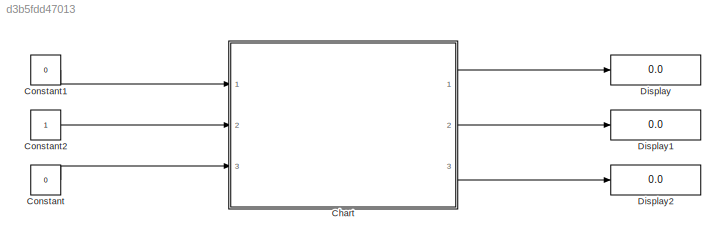
MODEL slx_d3b5fdd47013
KIND model
CONFIG AbsTol = auto
CONFIG EnableMultiTasking = off
CONFIG FixedStep = auto
CONFIG MaxStep = auto
CONFIG MinStep = auto
CONFIG RelTol = 1e-3
CONFIG SampleTimeConstraint = Unconstrained
CONFIG SolverName = VariableStepAuto
CONFIG StartTime = 0.0
CONFIG StopTime = 10.0
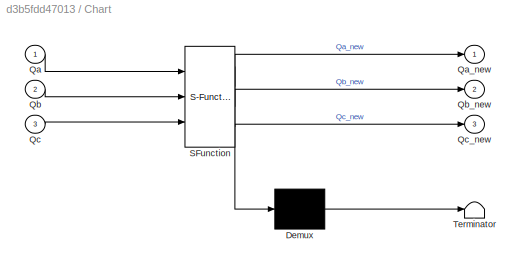
BLOCK [SubSystem] Chart
  ErrorFcn = Stateflow.Translate.translate
  PermitHierarchicalResolution = ExplicitOnly
  Ports = [3, 3]
  RequestExecContextInheritance = off
  SFBlockType = Chart
  TreatAsAtomicUnit = on
BLOCK [Demux] Chart/ Demux 
  Outputs = 1
  Ports = [1, 1]
BLOCK [S-Function] Chart/ SFunction 
  EnableBusSupport = on
  FunctionName = sf_sfun
  PortCounts = [3 4]
  Ports = [3, 4]
  SFcnIsStateOwnerBlock = off
  SFunctionDeploymentMode = off
  Tag = Stateflow S-Function 3
BLOCK [Terminator] Chart/ Terminator 
BLOCK [Inport] Chart/Qa
BLOCK [Outport] Chart/Qa_new
BLOCK [Inport] Chart/Qb
  Port = 2
BLOCK [Outport] Chart/Qb_new
  Port = 2
BLOCK [Inport] Chart/Qc
  Port = 3
BLOCK [Outport] Chart/Qc_new
  Port = 3
BLOCK [Constant] Constant
  Value = 0
BLOCK [Constant] Constant1
  Value = 0
BLOCK [Constant] Constant2
BLOCK [Display] Display
  Decimation = 1
  Ports = [1]
BLOCK [Display] Display1
  Decimation = 1
  Ports = [1]
BLOCK [Display] Display2
  Decimation = 1
  Ports = [1]
LINE Chart:1 -> Display:1
LINE Chart:2 -> Display1:1
LINE Chart:3 -> Display2:1
LINE Constant1:1 -> Chart:1
LINE Constant2:1 -> Chart:2
LINE Constant:1 -> Chart:3
CHART Chart states=2 transitions=10
  STATE_LABEL 'Qa0'
  STATE_LABEL '% When Qa=0\n[Qa==0]'
  STATE_LABEL '[Qc==0]'
  STATE_LABEL '{Qa_new=0,Qb_new=Qb,Qc_new=1;}'
  STATE_LABEL '[Qb==1]{Qa_new=0,Qb_new=0,Qc_new=0;}'
  STATE_LABEL '[Qb==0]{Qa_new=0,Qb_new=1,Qc_new=0;}'
  STATE_LABEL 'Qa1\nentry:\nQa_new=Qa;\nQb_new=Qb;\nQc_new=Qc;'
CHART  states=0 transitions=0
